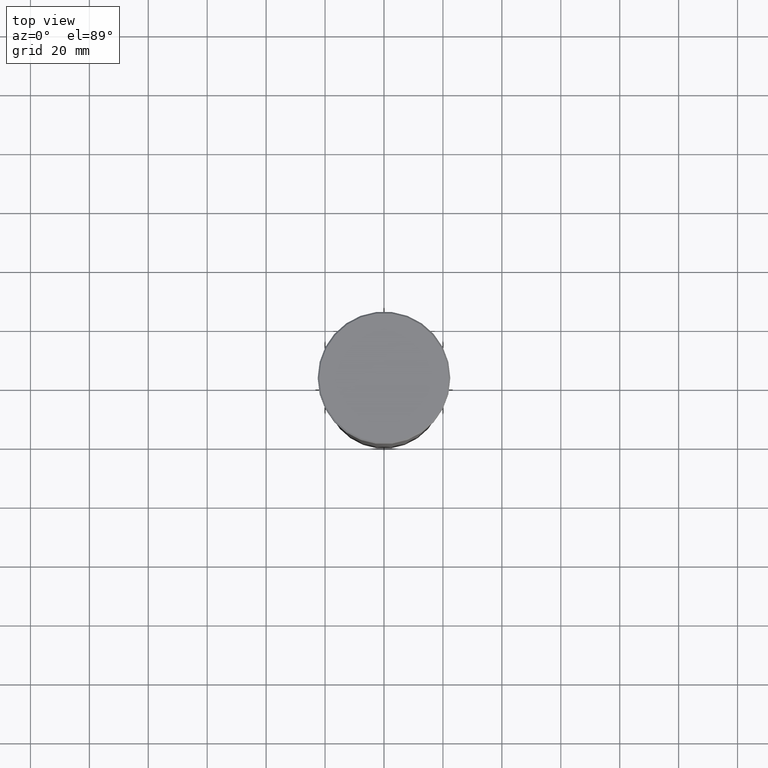
[diagram: clean part render]
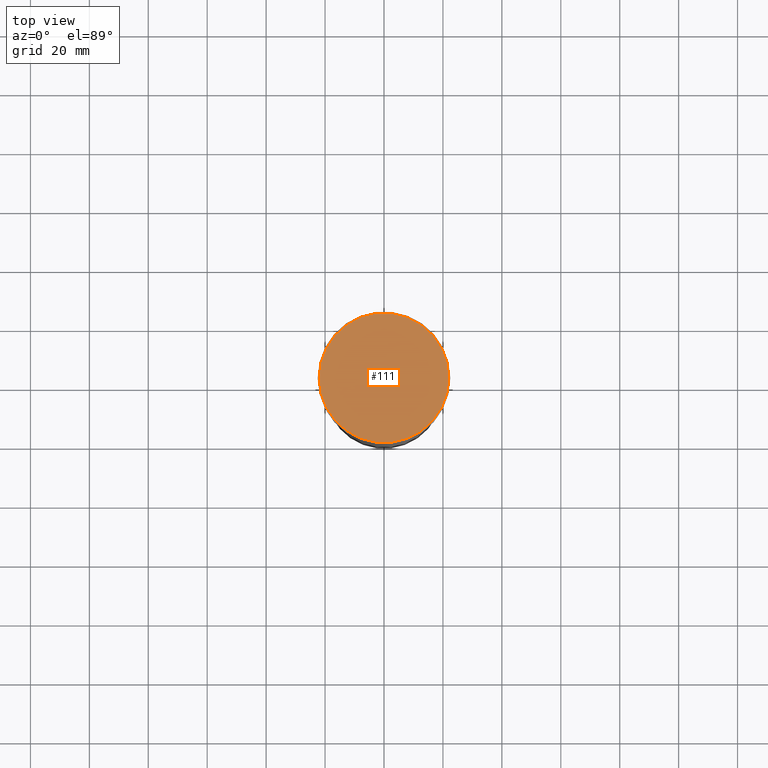
[diagram: same view with one face highlighted and labeled with its STEP entity id]
A machine part, top view. The second image highlights one B-rep face of the part: STEP entity #111.
In plain terms, the highlighted planar face has unit normal (0, -0, 1).
Its self-contained STEP definition (entity closure, byte-faithful):
#24 = EDGE_CURVE ( 'NONE', #300, #38, #570, .T. ) ;
#38 = VERTEX_POINT ( 'NONE', #372 ) ;
#44 = CIRCLE ( 'NONE', #415, 22.00000000000000711 ) ;
#50 = AXIS2_PLACEMENT_3D ( 'NONE', #254, #165, #346 ) ;
#54 = EDGE_LOOP ( 'NONE', ( #441, #334 ) ) ;
#99 = EDGE_CURVE ( 'NONE', #38, #300, #44, .T. ) ;
#111 = ADVANCED_FACE ( 'NONE', ( #496 ), #360, .T. ) ;
#131 = DIRECTION ( 'NONE',  ( -0.000000000000000000, -0.000000000000000000, 1.000000000000000000 ) ) ;
#165 = DIRECTION ( 'NONE',  ( -0.000000000000000000, -0.000000000000000000, 1.000000000000000000 ) ) ;
#254 = CARTESIAN_POINT ( 'NONE',  ( 0.000000000000000000, 0.000000000000000000, 0.000000000000000000 ) ) ;
#297 = AXIS2_PLACEMENT_3D ( 'NONE', #502, #541, #413 ) ;
#300 = VERTEX_POINT ( 'NONE', #354 ) ;
#334 = ORIENTED_EDGE ( 'NONE', *, *, #24, .T. ) ;
#346 = DIRECTION ( 'NONE',  ( 1.000000000000000000, 0.000000000000000000, 0.000000000000000000 ) ) ;
#354 = CARTESIAN_POINT ( 'NONE',  ( 22.00000000000000711, 2.724839128102860991E-15, 0.000000000000000000 ) ) ;
#360 = PLANE ( 'NONE',  #297 ) ;
#372 = CARTESIAN_POINT ( 'NONE',  ( -22.00000000000000711, 0.000000000000000000, 0.000000000000000000 ) ) ;
#413 = DIRECTION ( 'NONE',  ( 1.000000000000000000, 0.000000000000000000, 0.000000000000000000 ) ) ;
#415 = AXIS2_PLACEMENT_3D ( 'NONE', #548, #131, #589 ) ;
#441 = ORIENTED_EDGE ( 'NONE', *, *, #99, .T. ) ;
#496 = FACE_OUTER_BOUND ( 'NONE', #54, .T. ) ;
#502 = CARTESIAN_POINT ( 'NONE',  ( 0.000000000000000000, 0.000000000000000000, 0.000000000000000000 ) ) ;
#541 = DIRECTION ( 'NONE',  ( 0.000000000000000000, -0.000000000000000000, 1.000000000000000000 ) ) ;
#548 = CARTESIAN_POINT ( 'NONE',  ( 0.000000000000000000, 0.000000000000000000, 0.000000000000000000 ) ) ;
#570 = CIRCLE ( 'NONE', #50, 22.00000000000000711 ) ;
#589 = DIRECTION ( 'NONE',  ( 1.000000000000000000, 0.000000000000000000, 0.000000000000000000 ) ) ;